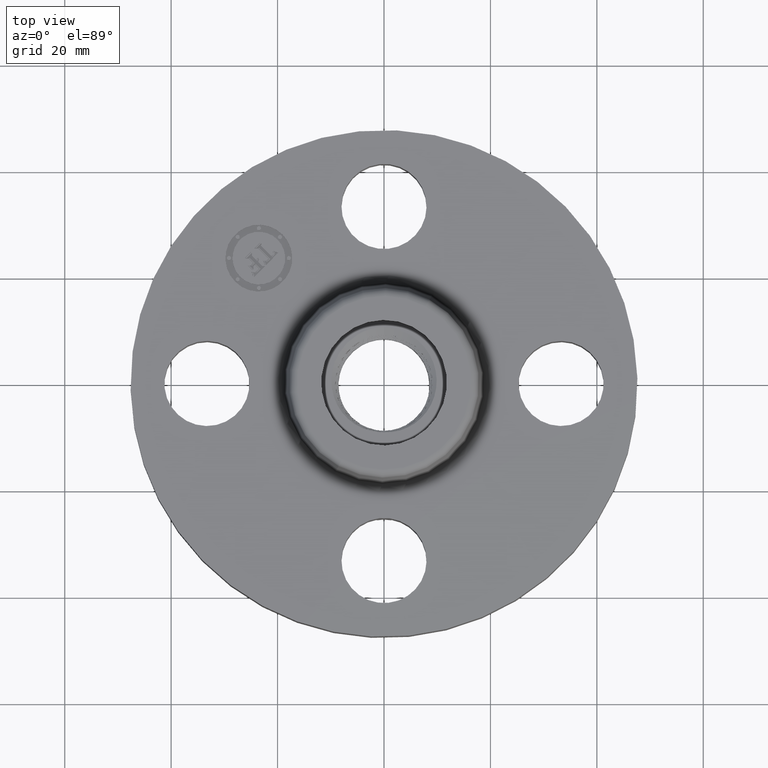
[diagram: clean part render]
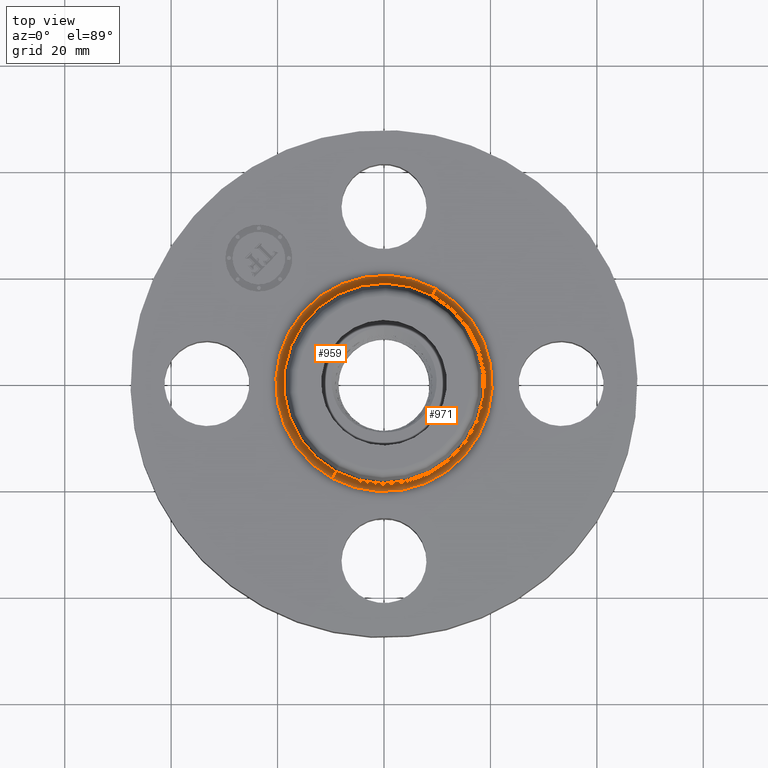
[diagram: same view with one multi-face feature highlighted, each face labeled with its STEP entity id]
A machine part, top view. The highlighted faces form ONE feature: a constant-radius fillet chain: 2 tangent blend faces with common blend radius 1.524 mm. The faces share edges in the B-rep.
Their STEP definitions:
[1] entity #959 (Torus):
#893=AXIS2_PLACEMENT_3D('Circle Axis2P3D',#891,#892,$) ;
#932=AXIS2_PLACEMENT_3D('Torus Axis2P3D',#929,#930,#931) ;
#936=AXIS2_PLACEMENT_3D('Circle Axis2P3D',#934,#935,$) ;
#945=AXIS2_PLACEMENT_3D('Circle Axis2P3D',#943,#944,$) ;
#950=AXIS2_PLACEMENT_3D('Circle Axis2P3D',#948,#949,$) ;
#891=CARTESIAN_POINT('Axis2P3D Location',(0.,0.,0.609581109342)) ;
#895=CARTESIAN_POINT('Vertex',(-0.355377782267,-0.650514667009,0.609581109342)) ;
#897=CARTESIAN_POINT('Vertex',(0.355377782267,0.650514667009,0.609581109342)) ;
#929=CARTESIAN_POINT('Axis2P3D Location',(0.,0.,0.620000000002)) ;
#934=CARTESIAN_POINT('Axis2P3D Location',(0.,0.,0.560000000002)) ;
#938=CARTESIAN_POINT('Vertex',(-0.383706301512,-0.702369673661,0.560000000002)) ;
#940=CARTESIAN_POINT('Vertex',(0.383706301512,0.702369673661,0.560000000002)) ;
#943=CARTESIAN_POINT('Axis2P3D Location',(-0.383706301512,-0.702369673661,0.620000000002)) ;
#948=CARTESIAN_POINT('Axis2P3D Location',(0.383706301512,0.702369673661,0.620000000002)) ;
#892=DIRECTION('Axis2P3D Direction',(0.,0.,-0.0393700787402)) ;
#930=DIRECTION('Axis2P3D Direction',(0.,0.,-0.0393700787402)) ;
#931=DIRECTION('Axis2P3D XDirection',(0.0188750212049,0.0345504945626,0.)) ;
#935=DIRECTION('Axis2P3D Direction',(0.,0.,-0.0393700787402)) ;
#944=DIRECTION('Axis2P3D Direction',(0.0345504945626,-0.0188750212049,0.)) ;
#949=DIRECTION('Axis2P3D Direction',(-0.0345504945626,0.0188750212049,0.)) ;
#954=ORIENTED_EDGE('',*,*,#942,.F.) ;
#955=ORIENTED_EDGE('',*,*,#947,.T.) ;
#956=ORIENTED_EDGE('',*,*,#899,.T.) ;
#957=ORIENTED_EDGE('',*,*,#952,.F.) ;
#959=ADVANCED_FACE('PartBody',(#958),#933,.F.) ;
#894=CIRCLE('generated circle',#893,0.741257512693) ;
#937=CIRCLE('generated circle',#936,0.800345977874) ;
#946=CIRCLE('generated circle',#945,0.0600000000002) ;
#951=CIRCLE('generated circle',#950,0.0600000000002) ;
#933=TOROIDAL_SURFACE('homeo Torus',#932,0.800345977874,0.0600000000002) ;
#899=EDGE_CURVE('',#896,#898,#894,.T.) ;
#942=EDGE_CURVE('',#939,#941,#937,.T.) ;
#947=EDGE_CURVE('',#939,#896,#946,.T.) ;
#952=EDGE_CURVE('',#941,#898,#951,.T.) ;
#953=EDGE_LOOP('',(#954,#955,#956,#957)) ;
#958=FACE_OUTER_BOUND('',#953,.T.) ;
#896=VERTEX_POINT('',#895) ;
#898=VERTEX_POINT('',#897) ;
#939=VERTEX_POINT('',#938) ;
#941=VERTEX_POINT('',#940) ;
[2] entity #971 (Torus):
#919=AXIS2_PLACEMENT_3D('Circle Axis2P3D',#917,#918,$) ;
#932=AXIS2_PLACEMENT_3D('Torus Axis2P3D',#929,#930,#931) ;
#945=AXIS2_PLACEMENT_3D('Circle Axis2P3D',#943,#944,$) ;
#950=AXIS2_PLACEMENT_3D('Circle Axis2P3D',#948,#949,$) ;
#962=AXIS2_PLACEMENT_3D('Circle Axis2P3D',#960,#961,$) ;
#895=CARTESIAN_POINT('Vertex',(-0.355377782267,-0.650514667009,0.609581109342)) ;
#897=CARTESIAN_POINT('Vertex',(0.355377782267,0.650514667009,0.609581109342)) ;
#917=CARTESIAN_POINT('Axis2P3D Location',(0.,0.,0.609581109342)) ;
#929=CARTESIAN_POINT('Axis2P3D Location',(0.,0.,0.620000000002)) ;
#938=CARTESIAN_POINT('Vertex',(-0.383706301512,-0.702369673661,0.560000000002)) ;
#940=CARTESIAN_POINT('Vertex',(0.383706301512,0.702369673661,0.560000000002)) ;
#943=CARTESIAN_POINT('Axis2P3D Location',(-0.383706301512,-0.702369673661,0.620000000002)) ;
#948=CARTESIAN_POINT('Axis2P3D Location',(0.383706301512,0.702369673661,0.620000000002)) ;
#960=CARTESIAN_POINT('Axis2P3D Location',(0.,0.,0.560000000002)) ;
#918=DIRECTION('Axis2P3D Direction',(0.,0.,-0.0393700787402)) ;
#930=DIRECTION('Axis2P3D Direction',(0.,0.,-0.0393700787402)) ;
#931=DIRECTION('Axis2P3D XDirection',(0.0188750212049,0.0345504945626,0.)) ;
#944=DIRECTION('Axis2P3D Direction',(0.0345504945626,-0.0188750212049,0.)) ;
#949=DIRECTION('Axis2P3D Direction',(-0.0345504945626,0.0188750212049,0.)) ;
#961=DIRECTION('Axis2P3D Direction',(0.,0.,-0.0393700787402)) ;
#966=ORIENTED_EDGE('',*,*,#964,.F.) ;
#967=ORIENTED_EDGE('',*,*,#952,.T.) ;
#968=ORIENTED_EDGE('',*,*,#921,.T.) ;
#969=ORIENTED_EDGE('',*,*,#947,.F.) ;
#971=ADVANCED_FACE('PartBody',(#970),#933,.F.) ;
#920=CIRCLE('generated circle',#919,0.741257512693) ;
#946=CIRCLE('generated circle',#945,0.0600000000002) ;
#951=CIRCLE('generated circle',#950,0.0600000000002) ;
#963=CIRCLE('generated circle',#962,0.800345977874) ;
#933=TOROIDAL_SURFACE('homeo Torus',#932,0.800345977874,0.0600000000002) ;
#921=EDGE_CURVE('',#898,#896,#920,.T.) ;
#947=EDGE_CURVE('',#939,#896,#946,.T.) ;
#952=EDGE_CURVE('',#941,#898,#951,.T.) ;
#964=EDGE_CURVE('',#941,#939,#963,.T.) ;
#965=EDGE_LOOP('',(#966,#967,#968,#969)) ;
#970=FACE_OUTER_BOUND('',#965,.T.) ;
#896=VERTEX_POINT('',#895) ;
#898=VERTEX_POINT('',#897) ;
#939=VERTEX_POINT('',#938) ;
#941=VERTEX_POINT('',#940) ;